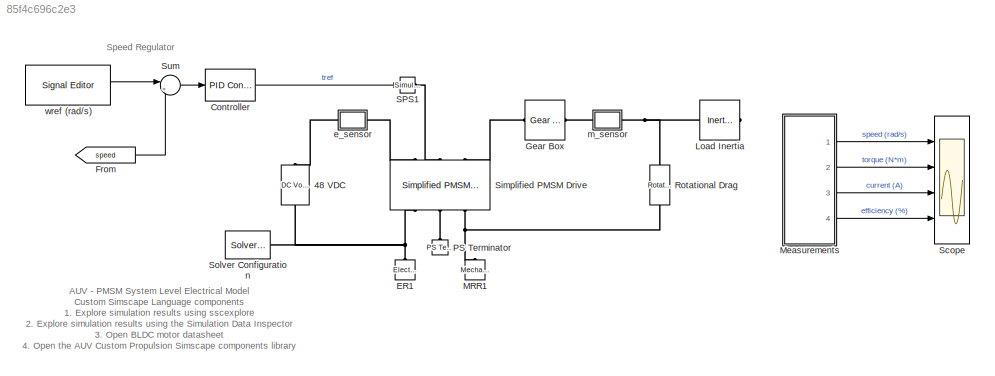
MODEL slx_85f4c696c2e3
KIND model
CONFIG AbsTol = auto
CONFIG EnableMultiTasking = off
CONFIG FixedStep = auto
CONFIG MaxStep = auto
CONFIG MinStep = auto
CONFIG RelTol = 1e-3
CONFIG SampleTimeConstraint = Unconstrained
CONFIG Solver = ode23t
CONFIG SolverName = ode23t
CONFIG StartTime = 0.0
CONFIG StopTime = 10
BLOCK [Reference] 48 VDC  REF=fl_lib/Electrical/Electrical Sources/DC Voltage Source
  NameLocation = right
  Ports = [0, 0, 0, 0, 0, 1, 1]
  SourceBlock = fl_lib/Electrical/Electrical Sources/DC Voltage Source
  SourceProductBaseCode = SS
  SourceType = DC Voltage Source
BLOCK [Reference] Controller  REF=simulink/Continuous/PID Controller
  Ports = [1, 1]
  SourceBlock = simulink/Continuous/PID Controller
  SourceProductBaseCode = SL
  SourceType = PID 1dof
BLOCK [Reference] ER1  REF=fl_lib/Electrical/Electrical Elements/Electrical Reference
  NameLocation = right
  Ports = [0, 0, 0, 0, 0, 1]
  SourceBlock = fl_lib/Electrical/Electrical Elements/Electrical Reference
  SourceProductName = Foundation Library
  SourceType = Electrical Reference
BLOCK [From] From
  GotoTag = speed
  TagVisibility = global
BLOCK [Reference] Gear Box  REF=fl_lib/Mechanical/Mechanisms/Gear Box
  Ports = [0, 0, 0, 0, 0, 1, 1]
  SourceBlock = fl_lib/Mechanical/Mechanisms/Gear Box
  SourceProductBaseCode = SS
  SourceType = Gear Box
BLOCK [Reference] Load Inertia  REF=fl_lib/Mechanical/Rotational Elements/Inertia
  Ports = [0, 0, 0, 0, 0, 1]
  SourceBlock = fl_lib/Mechanical/Rotational Elements/Inertia
  SourceProductBaseCode = SS
  SourceType = Inertia
BLOCK [Reference] MRR1  REF=fl_lib/Mechanical/Rotational Elements/Mechanical
Rotational Reference
  NameLocation = right
  Ports = [0, 0, 0, 0, 0, 1]
  SourceBlock = fl_lib/Mechanical/Rotational Elements/Mechanical\nRotational Reference
  SourceProductBaseCode = SS
  SourceType = Mechanical\nRotational Reference
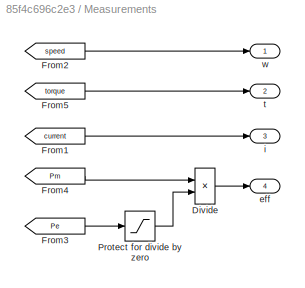
BLOCK [SubSystem] Measurements
  Ports = [0, 4]
  RequestExecContextInheritance = off
BLOCK [Product] Measurements/Divide
  Inputs = */
  Ports = [2, 1]
BLOCK [From] Measurements/From1
  GotoTag = current
  TagVisibility = global
BLOCK [From] Measurements/From2
  GotoTag = speed
  TagVisibility = global
BLOCK [From] Measurements/From3
  GotoTag = Pe
  TagVisibility = global
BLOCK [From] Measurements/From4
  GotoTag = Pm
  TagVisibility = global
BLOCK [From] Measurements/From5
  GotoTag = torque
  TagVisibility = global
BLOCK [Saturate] Measurements/Protect for divide by zero
  LowerLimit = 1e-3
  UpperLimit = inf
BLOCK [Outport] Measurements/eff
  Port = 4
BLOCK [Outport] Measurements/i
  Port = 3
BLOCK [Outport] Measurements/t
  Port = 2
BLOCK [Outport] Measurements/w
BLOCK [Reference] PS Terminator  REF=fl_lib/Physical Signals/Sinks/PS Terminator
  NameLocation = left
  Ports = [0, 0, 0, 0, 0, 1]
  SourceBlock = fl_lib/Physical Signals/Sinks/PS Terminator
  SourceProductBaseCode = SS
  SourceType = PS Terminator
BLOCK [Reference] Rotational Drag  REF=AUVPropulsionSSC_lib/Rotational Drag
  NameLocation = right
  Ports = [0, 0, 0, 0, 0, 1, 1]
  SourceBlock = AUVPropulsionSSC_lib/Rotational Drag
  SourceType = Rotational Drag
BLOCK [Reference] SPS1  REF=nesl_utility/Simulink-PS
Converter
  Ports = [1, 0, 0, 0, 0, 0, 1]
  SourceBlock = nesl_utility/Simulink-PS\nConverter
  SourceProductBaseCode = SS
  SourceType = Simulink-PS\nConverter
BLOCK [Scope] Scope
  Floating = off
  NumInputPorts = 4
  Ports = [4]
  ScopeSpecificationString = Simulink.scopes.TimeScopeBlockCfg('CurrentConfiguration', extmgr.ConfigurationSet(extmgr.Configuration('Core','General UI',true),extmgr.Configuration('Core','Source UI',true),extmgr.Configuration('Sources','WiredSimulink',true,'DataLoggingVariableName','ScopeData1'),extmgr.Configuration('Visuals','Time Domain',true,'SerializedDisplays',{struct('MinYLimReal','-39.275','MaxYLimReal','39.275','YLabel...<+3492ch>
BLOCK [Reference] Simplified PMSM Drive  REF=ee_lib/Electromechanical/Permanent Magnet/Simplified PMSM
Drive
  NameLocation = right
  Ports = [0, 0, 0, 0, 0, 3, 3]
  SourceBlock = ee_lib/Electromechanical/Permanent Magnet/Simplified PMSM\nDrive
  SourceProductBaseCode = PS
  SourceType = Simplified PMSM\nDrive
BLOCK [Reference] Solver Configuration  REF=nesl_utility/Solver
Configuration
  NameLocation = top
  Ports = [0, 0, 0, 0, 0, 0, 1]
  SourceBlock = nesl_utility/Solver\nConfiguration
  SourceProductBaseCode = SS
  SourceType = Solver\nConfiguration
BLOCK [Sum] Sum
  Inputs = |+-
  Ports = [2, 1]
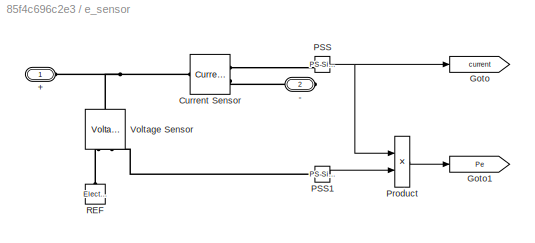
BLOCK [SubSystem] e_sensor
  Ports = [0, 0, 0, 0, 0, 1, 1]
  RequestExecContextInheritance = off
BLOCK [PMIOPort] e_sensor/+
  Side = Left
BLOCK [PMIOPort] e_sensor/-
  Port = 2
  Side = Right
BLOCK [Reference] e_sensor/Current Sensor  REF=fl_lib/Electrical/Electrical Sensors/Current Sensor
  Ports = [0, 0, 0, 0, 0, 1, 2]
  SourceBlock = fl_lib/Electrical/Electrical Sensors/Current Sensor
  SourceProductBaseCode = SS
  SourceType = Current Sensor
BLOCK [Goto] e_sensor/Goto
  GotoTag = current
  TagVisibility = global
BLOCK [Goto] e_sensor/Goto1
  GotoTag = Pe
  TagVisibility = global
BLOCK [Reference] e_sensor/PSS  REF=nesl_utility/PS-Simulink
Converter
  Ports = [0, 1, 0, 0, 0, 1]
  SourceBlock = nesl_utility/PS-Simulink\nConverter
  SourceProductBaseCode = SS
  SourceType = PS-Simulink\nConverter
BLOCK [Reference] e_sensor/PSS1  REF=nesl_utility/PS-Simulink
Converter
  Ports = [0, 1, 0, 0, 0, 1]
  SourceBlock = nesl_utility/PS-Simulink\nConverter
  SourceProductBaseCode = SS
  SourceType = PS-Simulink\nConverter
BLOCK [Product] e_sensor/Product
  Ports = [2, 1]
BLOCK [Reference] e_sensor/REF  REF=fl_lib/Electrical/Electrical Elements/Electrical Reference
  NameLocation = right
  Ports = [0, 0, 0, 0, 0, 1]
  SourceBlock = fl_lib/Electrical/Electrical Elements/Electrical Reference
  SourceProductBaseCode = SS
  SourceType = Electrical Reference
BLOCK [Reference] e_sensor/Voltage Sensor  REF=fl_lib/Electrical/Electrical Sensors/Voltage Sensor
  NameLocation = right
  Ports = [0, 0, 0, 0, 0, 1, 2]
  SourceBlock = fl_lib/Electrical/Electrical Sensors/Voltage Sensor
  SourceProductBaseCode = SS
  SourceType = Voltage Sensor
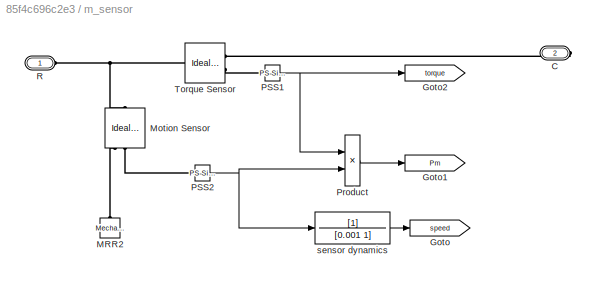
BLOCK [SubSystem] m_sensor
  Ports = [0, 0, 0, 0, 0, 1, 1]
  RequestExecContextInheritance = off
BLOCK [PMIOPort] m_sensor/C
  Port = 2
  Side = Right
BLOCK [Goto] m_sensor/Goto
  GotoTag = speed
  TagVisibility = global
BLOCK [Goto] m_sensor/Goto1
  GotoTag = Pm
  TagVisibility = global
BLOCK [Goto] m_sensor/Goto2
  GotoTag = torque
  TagVisibility = global
BLOCK [Reference] m_sensor/MRR2  REF=fl_lib/Mechanical/Rotational Elements/Mechanical
Rotational Reference
  NameLocation = right
  Ports = [0, 0, 0, 0, 0, 1]
  SourceBlock = fl_lib/Mechanical/Rotational Elements/Mechanical\nRotational Reference
  SourceProductBaseCode = SS
  SourceType = Mechanical\nRotational Reference
BLOCK [Reference] m_sensor/Motion Sensor  REF=fl_lib/Mechanical/Mechanical Sensors/Ideal Rotational
Motion Sensor
  NameLocation = left
  Ports = [0, 0, 0, 0, 0, 1, 3]
  SourceBlock = fl_lib/Mechanical/Mechanical Sensors/Ideal Rotational\nMotion Sensor
  SourceProductBaseCode = SS
  SourceType = Ideal Rotational\nMotion Sensor
BLOCK [Reference] m_sensor/PSS1  REF=nesl_utility/PS-Simulink
Converter
  Ports = [0, 1, 0, 0, 0, 1]
  SourceBlock = nesl_utility/PS-Simulink\nConverter
  SourceProductBaseCode = SS
  SourceType = PS-Simulink\nConverter
BLOCK [Reference] m_sensor/PSS2  REF=nesl_utility/PS-Simulink
Converter
  Ports = [0, 1, 0, 0, 0, 1]
  SourceBlock = nesl_utility/PS-Simulink\nConverter
  SourceProductBaseCode = SS
  SourceType = PS-Simulink\nConverter
BLOCK [Product] m_sensor/Product
  Ports = [2, 1]
BLOCK [PMIOPort] m_sensor/R
  Side = Left
BLOCK [Reference] m_sensor/Torque Sensor  REF=fl_lib/Mechanical/Mechanical Sensors/Ideal Torque Sensor
  Ports = [0, 0, 0, 0, 0, 1, 2]
  SourceBlock = fl_lib/Mechanical/Mechanical Sensors/Ideal Torque Sensor
  SourceProductBaseCode = SS
  SourceType = Ideal Torque Sensor
BLOCK [TransferFcn] m_sensor/sensor dynamics
  Denominator = [0.001 1]
BLOCK [Reference] wref (rad//s)  REF=SignalEditorBlockLib/Signal Editor
  Ports = [0, 1]
  SourceBlock = SignalEditorBlockLib/Signal Editor
  SourceProductBaseCode = SL
  SourceType = SignalEditor
  UserDataPersistent = on
ANNOTATION (root): AUV - PMSM System Level Electrical Model Custom Simscape Language components 1. Explore simulation results using sscexplore 2. Explore simulation results using the Simulation Data Inspector 3. Open BLDC motor datasheet 4. Open the AUV Custom Propulsion Simscape components library
ANNOTATION (root): Speed Regulator
LINE Controller:1 -> SPS1:1
LINE From:1 -> Sum:2
LINE Measurements/Divide:1 -> Measurements/eff:1
LINE Measurements/From1:1 -> Measurements/i:1
LINE Measurements/From2:1 -> Measurements/w:1
LINE Measurements/From3:1 -> Measurements/Protect for divide by zero:1
LINE Measurements/From4:1 -> Measurements/Divide:1
LINE Measurements/From5:1 -> Measurements/t:1
LINE Measurements/Protect for divide by zero:1 -> Measurements/Divide:2
LINE Measurements:1 -> Scope:1
LINE Measurements:2 -> Scope:2
LINE Measurements:3 -> Scope:3
LINE Measurements:4 -> Scope:4
LINE Sum:1 -> Controller:1
LINE e_sensor/PSS1:1 -> e_sensor/Product:2
NET e_sensor/PSS:1 -> e_sensor/Goto:1, e_sensor/Product:1
LINE e_sensor/Product:1 -> e_sensor/Goto1:1
NET m_sensor/PSS1:1 -> m_sensor/Goto2:1, m_sensor/Product:1
NET m_sensor/PSS2:1 -> m_sensor/Product:2, m_sensor/sensor dynamics:1
LINE m_sensor/Product:1 -> m_sensor/Goto1:1
LINE m_sensor/sensor dynamics:1 -> m_sensor/Goto:1
LINE wref (rad//s):1 -> Sum:1
PLINE 48 VDC:LConn1 -- e_sensor:LConn1
PNET net1: 48 VDC:RConn1 -- ER1:LConn1 -- Simplified PMSM Drive:RConn1 -- Solver Configuration:RConn1
PLINE Gear Box:LConn1 -- Simplified PMSM Drive:LConn3
PLINE Gear Box:RConn1 -- m_sensor:LConn1
PNET net2: Load Inertia:LConn1 -- Rotational Drag:LConn1 -- m_sensor:RConn1
PNET net3: MRR1:LConn1 -- Rotational Drag:RConn1 -- Simplified PMSM Drive:RConn3
PLINE PS Terminator:LConn1 -- Simplified PMSM Drive:RConn2
PLINE SPS1:RConn1 -- Simplified PMSM Drive:LConn2
PLINE Simplified PMSM Drive:LConn1 -- e_sensor:RConn1
PNET net4: e_sensor/+:RConn1 -- e_sensor/Current Sensor:LConn1 -- e_sensor/Voltage Sensor:LConn1
PLINE e_sensor/-:RConn1 -- e_sensor/Current Sensor:RConn2
PLINE e_sensor/Current Sensor:RConn1 -- e_sensor/PSS:LConn1
PLINE e_sensor/PSS1:LConn1 -- e_sensor/Voltage Sensor:RConn1
PLINE e_sensor/REF:LConn1 -- e_sensor/Voltage Sensor:RConn2
PLINE m_sensor/C:RConn1 -- m_sensor/Torque Sensor:RConn1
PLINE m_sensor/MRR2:LConn1 -- m_sensor/Motion Sensor:RConn1
PNET net5: m_sensor/Motion Sensor:LConn1 -- m_sensor/R:RConn1 -- m_sensor/Torque Sensor:LConn1
PLINE m_sensor/Motion Sensor:RConn2 -- m_sensor/PSS2:LConn1
PLINE m_sensor/PSS1:LConn1 -- m_sensor/Torque Sensor:RConn2
note: NET lines group one-source signal fan-out (src -> all destinations, sorted); 1:1 wires keep LINE; PNET lines group multi-terminal physical nets as a canonical sorted terminal list (undirected conserving connections); 2-terminal nets keep the pairwise PLINE form
